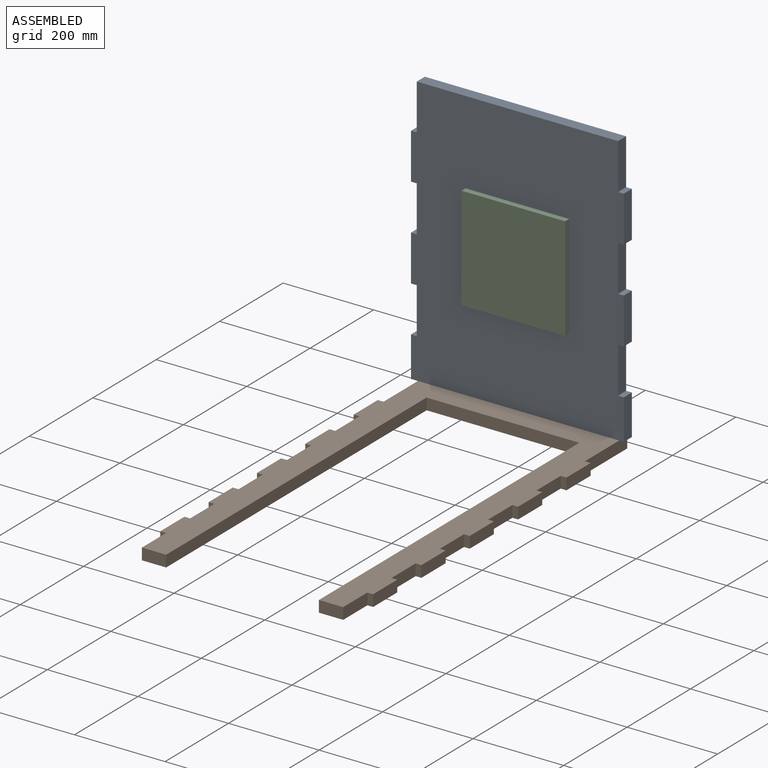
[diagram: assembled view]
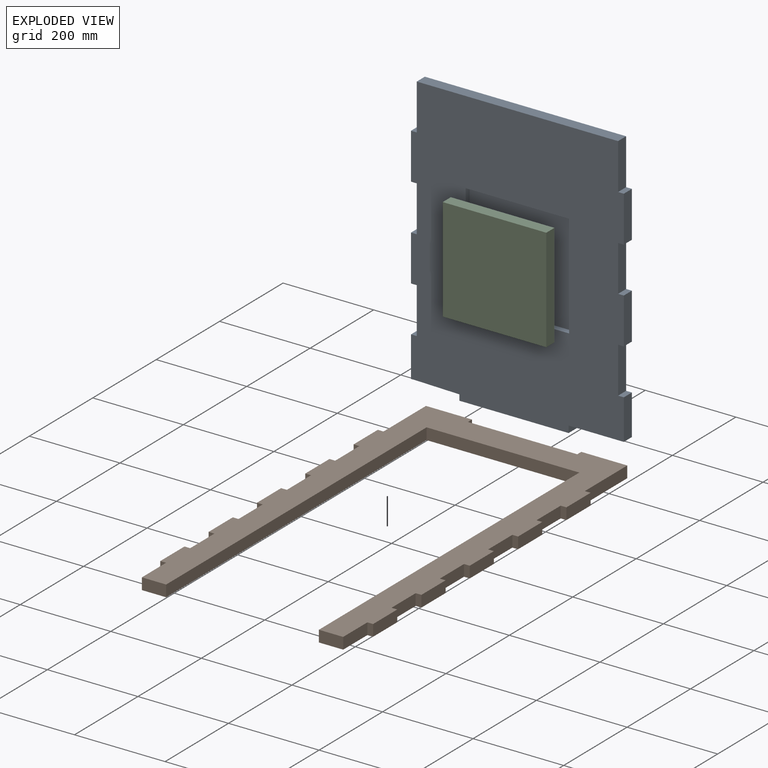
[diagram: exploded view]
GUIDED TOUR — MATED ASSEMBLY (Onshape document 3ea3240a3b025a6e508766ed, AutoMate assembly 3ea3240a3b025a6e508766ed_14e7e66ae7a0985470f5abe2_e801065fdd1ab063be09fcb5_default)

This assembly has 3 components, labeled P0..P2 below (a component is one placed occurrence of a part; the same part can appear more than once), held together by 2 mates. A mate is a constraint between two components; its type names the relative motion it leaves free:
  FASTENED — locks the two components together rigidly (no relative motion).
Axis/direction vectors are unit vectors and 'through' points are millimeter coordinates, both in the assembly's world frame.

MATES
  1. FASTENED "Fastened 2": P1 <-> P0, direction (0.000, 0.000, 1.000) through (-537.37, -304.44, -360.85) mm
  2. FASTENED "Fastened 1": P2 <-> P0, direction (0.000, 1.000, 0.000) through (-711.38, -317.14, -62.40) mm

ASSEMBLY ORDER
  1. P2 — the base component [order verified]
  2. P0 [order verified]
  3. P1 [order verified]
Order-tag legend:
  [order verified] — this step's position reverses a verified removal order: the component was checked to insert without passing through the ones already placed.

Of the 3 components, 3 carry the full construction recipe — the FeatureScript program that regenerates the part's solid from scratch; the rest are supplied as boundary geometry only.
Each toured component is shown spotlighted twice — in the assembled view, then in the exploded view, where a leader line traces a displaced component back to its assembled socket (saturated green if recipe-attached, orange if geometry-only; every other component desaturated gray) — followed by its recipe or geometry summary and the mates that hold it.
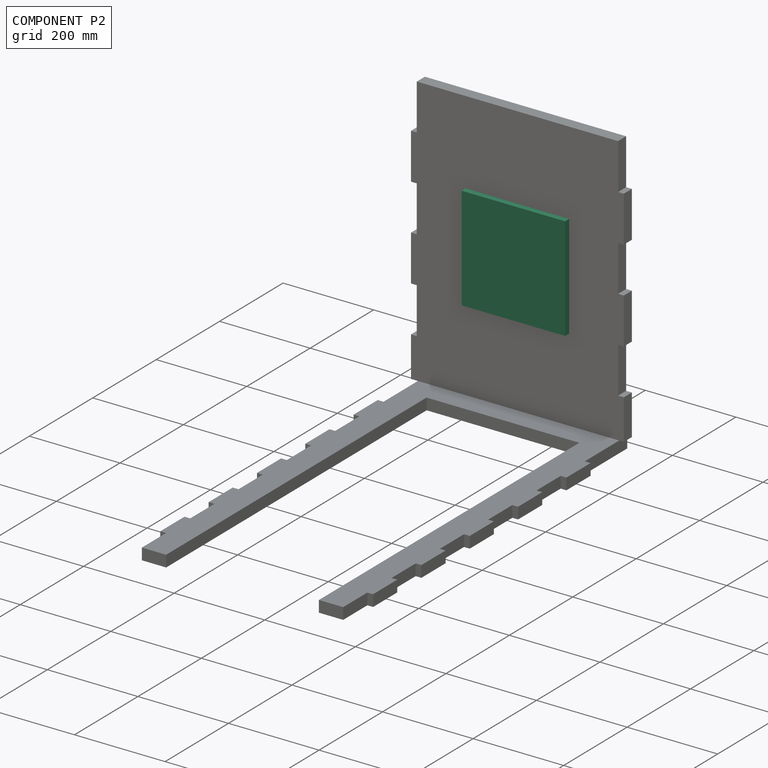
[diagram: component P2 — assembled]
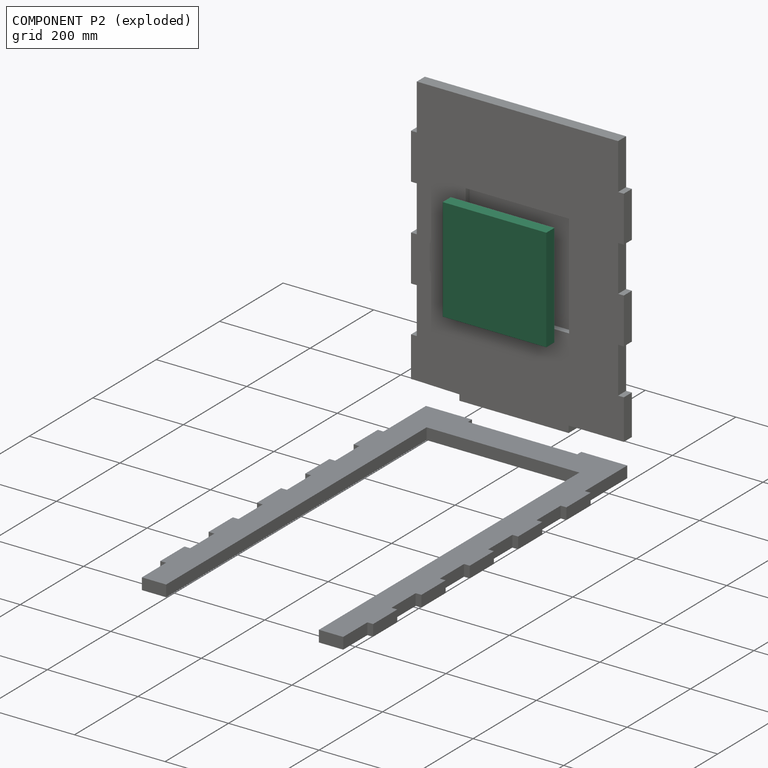
[diagram: component P2 — exploded]
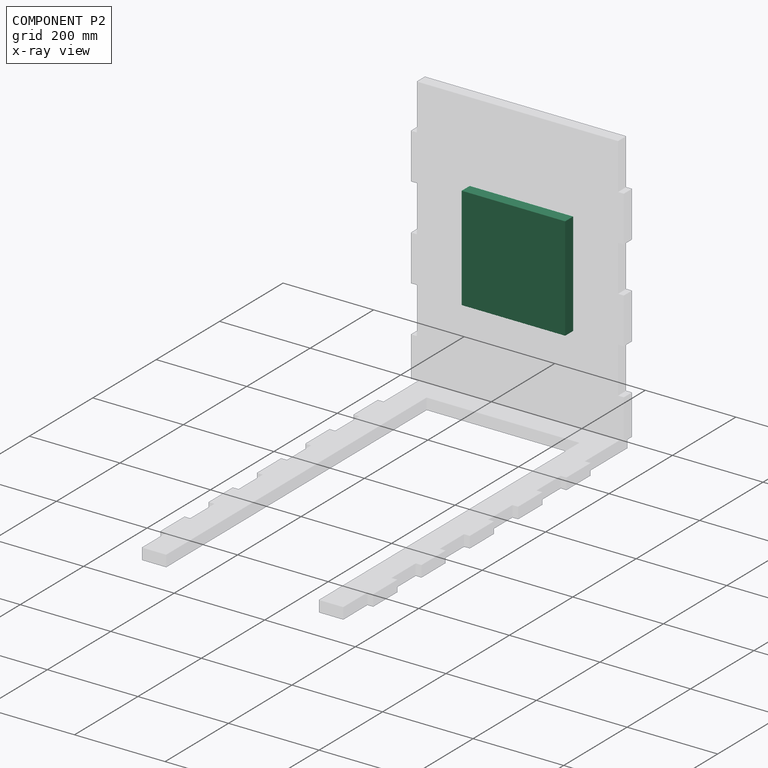
[diagram: component P2 — x-ray view]
COMPONENT P2 — recipe-attached (CADFS 00356478, mesh-verified: the recipe's output STEP matches this component's geometry to below the mesh-comparison resolution (tessellation chordal tolerance ~0.486 mm)).
Held by: FASTENED mate "Fastened 1" to P0.
Construction recipe (FeatureScript — the CAD program that rebuilds this solid; sketch coordinates are in the units given by the * unit suffixes, e.g. mm):

FeatureScript 1511;
import(path : "onshape/std/geometry.fs", version : "1511.0");
import(path : "onshape/std/common.fs", version : "1511.0");
const mm = millimeter;
const VERTEX = EntityType.VERTEX;
const EDGE = EntityType.EDGE;
const FACE = EntityType.FACE;
const BODY = EntityType.BODY;
function v(x, y){return vector(x, y);}
function OD(order){return orderDisambiguation(order);}
function OSD(set){return originalSetDisambiguation(set);}
function TD(topology){return topologyDisambiguation(topology);}
function TDD(query){return trueDependencyDisambiguation(query);}
function sQuery(a, b, c) {return sketchEntityQuery(a, b, c);}

annotation { "Feature Type Name" : "Feature", "Feature Type Description" : "" }
export const myFeature = defineFeature(function(context is Context, id is Id, definition is map)
    precondition{}
    {
        {
            var Q0;
            Q0=qCreatedBy(makeId("Front.planeOp"),FACE);
            var sketch = newSketch(context, id + "F0", { "sketchPlane" : qUnion([Q0])});
            skLineSegment(sketch, "E0.bottom", {"start": v(-46.86, 179.88) * mm, "end": v(181.74, 179.88) * mm});
            skLineSegment(sketch, "E0.top", {"start": v(-46.86, -48.72) * mm, "end": v(181.74, -48.72) * mm});
            skLineSegment(sketch, "E0.left", {"start": v(-46.86, 179.88) * mm, "end": v(-46.86, -48.72) * mm});
            skLineSegment(sketch, "E0.right", {"start": v(181.74, 179.88) * mm, "end": v(181.74, -48.72) * mm});
            skSolve(sketch);
        }
        {
            var Q0;
            Q0=makeQuery(id+"F0.imprint","IMPRINT",FACE,{"disambiguationData":[TD([[makeQuery(id+"F0.imprint","IMPRINT",EDGE,{"derivedFrom":sQuery(id+"F0.wireOp",EDGE,"E0.bottom")}),-1.0]])]});
            extrude(context, id + "F1", {"entities" : qUnion([Q0]), "depth" : 25.4 * mm});
        }
    });
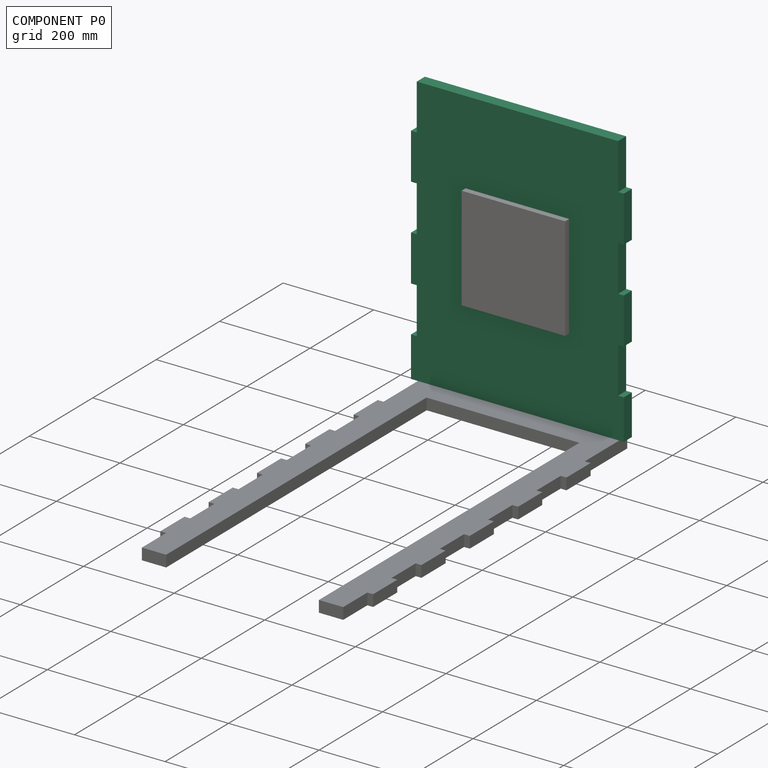
[diagram: component P0 — assembled]
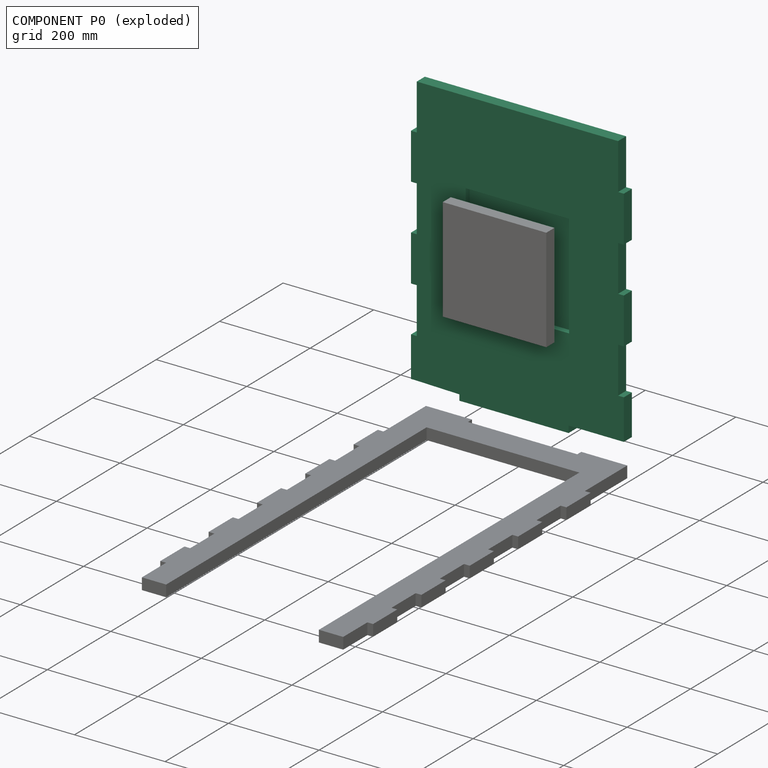
[diagram: component P0 — exploded]
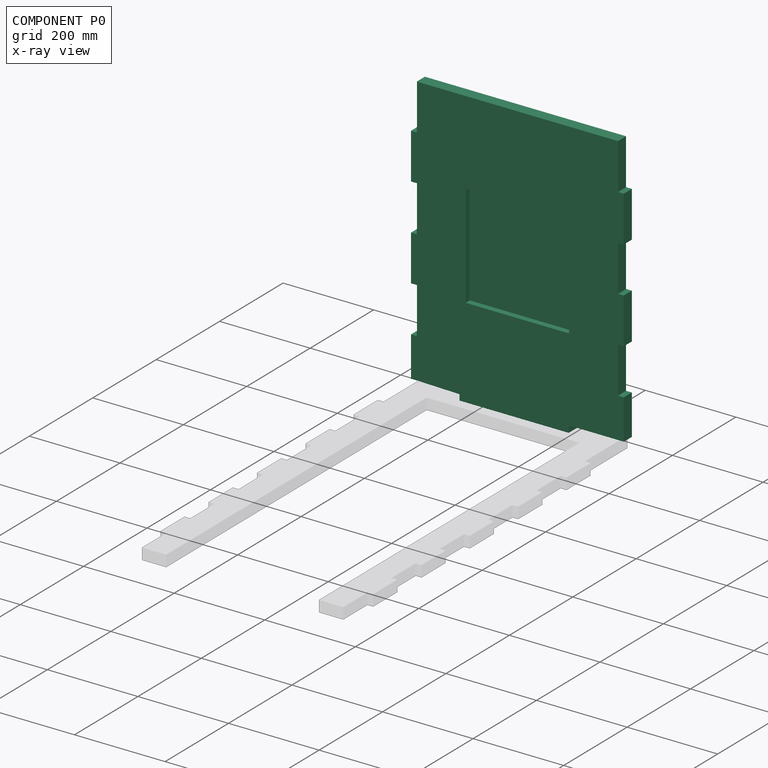
[diagram: component P0 — x-ray view]
COMPONENT P0 — recipe-attached (CADFS 00356479, mesh-verified: the recipe's output STEP matches this component's geometry to below the mesh-comparison resolution (tessellation chordal tolerance ~1.16 mm)).
Held by: FASTENED mate "Fastened 2" to P1; FASTENED mate "Fastened 1" to P2.
Construction recipe (FeatureScript — the CAD program that rebuilds this solid; sketch coordinates are in the units given by the * unit suffixes, e.g. mm):

FeatureScript 1511;
import(path : "onshape/std/geometry.fs", version : "1511.0");
import(path : "onshape/std/common.fs", version : "1511.0");
const mm = millimeter;
const VERTEX = EntityType.VERTEX;
const EDGE = EntityType.EDGE;
const FACE = EntityType.FACE;
const BODY = EntityType.BODY;
function v(x, y){return vector(x, y);}
function OD(order){return orderDisambiguation(order);}
function OSD(set){return originalSetDisambiguation(set);}
function TD(topology){return topologyDisambiguation(topology);}
function TDD(query){return trueDependencyDisambiguation(query);}
function sQuery(a, b, c) {return sketchEntityQuery(a, b, c);}

annotation { "Feature Type Name" : "Feature", "Feature Type Description" : "" }
export const myFeature = defineFeature(function(context is Context, id is Id, definition is map)
    precondition{}
    {
        {
            var Q0;
            Q0=qCreatedBy(makeId("Front.planeOp"),FACE);
            var sketch = newSketch(context, id + "F0", { "sketchPlane" : qUnion([Q0])});
            skLineSegment(sketch, "E0.bottom", {"start": v(-222.25, 298.45) * mm, "end": v(222.25, 298.45) * mm});
            skLineSegment(sketch, "E0.top", {"start": v(-222.25, -298.45) * mm, "end": v(222.25, -298.45) * mm});
            skLineSegment(sketch, "E0.left", {"start": v(-222.25, 298.45) * mm, "end": v(-222.25, -298.45) * mm});
            skLineSegment(sketch, "E0.right", {"start": v(222.25, 298.45) * mm, "end": v(222.25, -298.45) * mm});
            skLineSegment(sketch, "E1.left", {"start": v(222.25, 298.45) * mm, "end": v(222.25, 196.85) * mm});
            skLineSegment(sketch, "E2.bottom", {"start": v(222.25, 196.85) * mm, "end": v(234.95, 196.85) * mm});
            skLineSegment(sketch, "E2.top", {"start": v(222.25, 95.25) * mm, "end": v(234.95, 95.25) * mm});
            skLineSegment(sketch, "E2.left", {"start": v(222.25, 196.85) * mm, "end": v(222.25, 95.25) * mm});
            skLineSegment(sketch, "E2.right", {"start": v(234.95, 196.85) * mm, "end": v(234.95, 95.25) * mm});
            skLineSegment(sketch, "E3", {"start": v(222.25, 95.25) * mm, "end": v(222.25, -6.35) * mm});
            skLineSegment(sketch, "E4.bottom", {"start": v(222.25, -6.35) * mm, "end": v(234.95, -6.35) * mm});
            skLineSegment(sketch, "E4.top", {"start": v(222.25, -107.95) * mm, "end": v(234.95, -107.95) * mm});
            skLineSegment(sketch, "E4.left", {"start": v(222.25, -6.35) * mm, "end": v(222.25, -107.95) * mm});
            skLineSegment(sketch, "E4.right", {"start": v(234.95, -6.35) * mm, "end": v(234.95, -107.95) * mm});
            skLineSegment(sketch, "E5", {"start": v(222.25, -107.95) * mm, "end": v(222.25, -209.55) * mm});
            skLineSegment(sketch, "E6.bottom", {"start": v(222.25, -209.55) * mm, "end": v(234.95, -209.55) * mm});
            skLineSegment(sketch, "E6.top", {"start": v(222.25, -298.45) * mm, "end": v(234.95, -298.45) * mm});
            skLineSegment(sketch, "E6.left", {"start": v(222.25, -209.55) * mm, "end": v(222.25, -298.45) * mm});
            skLineSegment(sketch, "E6.right", {"start": v(234.95, -209.55) * mm, "end": v(234.95, -298.45) * mm});
            skLineSegment(sketch, "E7", {"start": v(0, 298.45) * mm, "end": v(0, -298.45) * mm});
            skLineSegment(sketch, "E8.MirrorCS", {"start": v(-222.25, -298.45) * mm, "end": v(-234.95, -298.45) * mm});
            skLineSegment(sketch, "E9.MirrorCS", {"start": v(-222.25, -209.55) * mm, "end": v(-234.95, -209.55) * mm});
            skLineSegment(sketch, "E10.MirrorCS", {"start": v(-222.25, 196.85) * mm, "end": v(-234.95, 196.85) * mm});
            skLineSegment(sketch, "E11.MirrorCS", {"start": v(-222.25, -107.95) * mm, "end": v(-234.95, -107.95) * mm});
            skLineSegment(sketch, "E12.MirrorCS", {"start": v(-222.25, 95.25) * mm, "end": v(-234.95, 95.25) * mm});
            skLineSegment(sketch, "E13.MirrorCS", {"start": v(-222.25, -6.35) * mm, "end": v(-234.95, -6.35) * mm});
            skLineSegment(sketch, "E14.MirrorCS", {"start": v(-222.25, -107.95) * mm, "end": v(-222.25, -209.55) * mm});
            skLineSegment(sketch, "E15.MirrorCS", {"start": v(-222.25, -209.55) * mm, "end": v(-222.25, -298.45) * mm});
            skLineSegment(sketch, "E16.MirrorCS", {"start": v(-234.95, -209.55) * mm, "end": v(-234.95, -298.45) * mm});
            skLineSegment(sketch, "E17.MirrorCS", {"start": v(222.25, 298.45) * mm, "end": v(-222.25, 298.45) * mm});
            skLineSegment(sketch, "E18.MirrorCS", {"start": v(-234.95, -6.35) * mm, "end": v(-234.95, -107.95) * mm});
            skLineSegment(sketch, "E19.MirrorCS", {"start": v(-222.25, 95.25) * mm, "end": v(-222.25, -6.35) * mm});
            skLineSegment(sketch, "E20.MirrorCS", {"start": v(-234.95, 196.85) * mm, "end": v(-234.95, 95.25) * mm});
            skLineSegment(sketch, "E21.MirrorCS", {"start": v(-222.25, 196.85) * mm, "end": v(-222.25, 95.25) * mm});
            skLineSegment(sketch, "E22.MirrorCS", {"start": v(-222.25, 298.45) * mm, "end": v(-222.25, 196.85) * mm});
            skLineSegment(sketch, "E23.MirrorCS", {"start": v(-222.25, -6.35) * mm, "end": v(-222.25, -107.95) * mm});
            skLineSegment(sketch, "E24.MirrorCS", {"start": v(222.25, -298.45) * mm, "end": v(-222.25, -298.45) * mm});
            skLineSegment(sketch, "E25.bottom", {"start": v(-222.25, -298.45) * mm, "end": v(-128.23, -300.66) * mm});
            skLineSegment(sketch, "E25.right", {"start": v(-128.23, -300.66) * mm, "end": v(-128.23, -313.36) * mm});
            skLineSegment(sketch, "E26", {"start": v(-128.23, -313.36) * mm, "end": v(113.07, -313.36) * mm});
            skLineSegment(sketch, "E27", {"start": v(113.07, -313.36) * mm, "end": v(113.07, -298.45) * mm});
            skLineSegment(sketch, "E28.bottom", {"start": v(114.3, 114.3) * mm, "end": v(-114.3, 114.3) * mm});
            skLineSegment(sketch, "E28.top", {"start": v(114.3, -114.3) * mm, "end": v(-114.3, -114.3) * mm});
            skLineSegment(sketch, "E28.left", {"start": v(114.3, 114.3) * mm, "end": v(114.3, -114.3) * mm});
            skLineSegment(sketch, "E28.right", {"start": v(-114.3, 114.3) * mm, "end": v(-114.3, -114.3) * mm});
            skPoint(sketch, "E28.middle", {"position": v(0, 0) * mm});
            skSolve(sketch);
        }
        {
            var Q0;
            Q0 = qSketchRegion(id + "F0", true);
            extrude(context, id + "F1", {"entities" : qUnion([Q0]), "depth" : 25.4 * mm});
        }
        {
            var Q0;
            {var subQ5=sQuery(id+"F0.wireOp",EDGE,"E28.right");Q0=makeQuery(id+"F0.imprint","IMPRINT",FACE,{"disambiguationData":[TD([[makeQuery(id+"F0.imprint","IMPRINT",EDGE,{"derivedFrom":subQ5}),1.0]])]});}
            var Q1;
            {var subQ5=sQuery(id+"F0.wireOp",EDGE,"E28.left");Q1=makeQuery(id+"F0.imprint","IMPRINT",FACE,{"disambiguationData":[TD([[makeQuery(id+"F0.imprint","IMPRINT",EDGE,{"derivedFrom":subQ5}),-1.0]])]});}
            extrude(context, id + "F2", {"entities" : qUnion([Q0, Q1]), "operationType" : NewBodyOperationType.ADD, "depth" : 12.7 * mm});
        }
    });
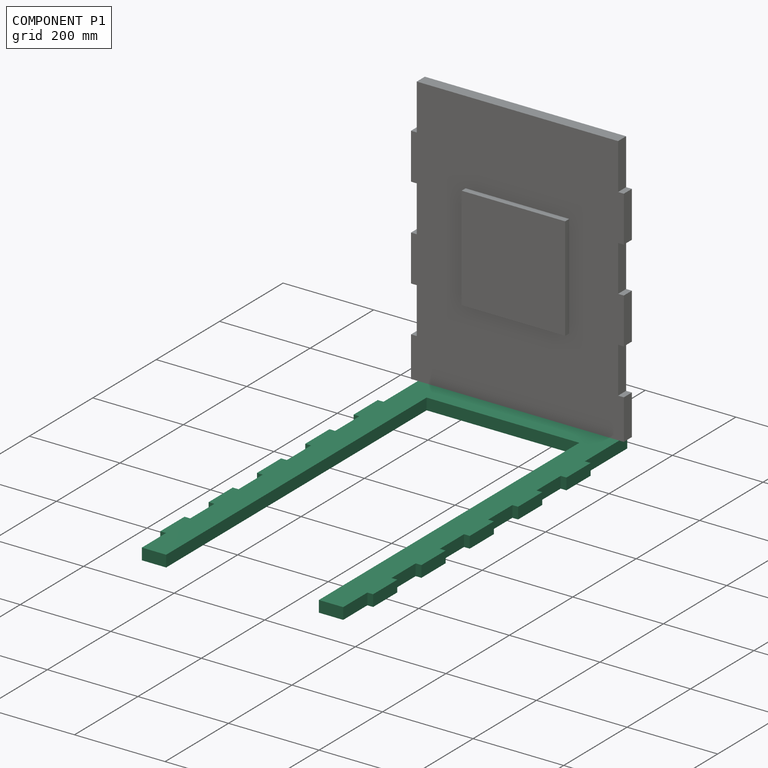
[diagram: component P1 — assembled]
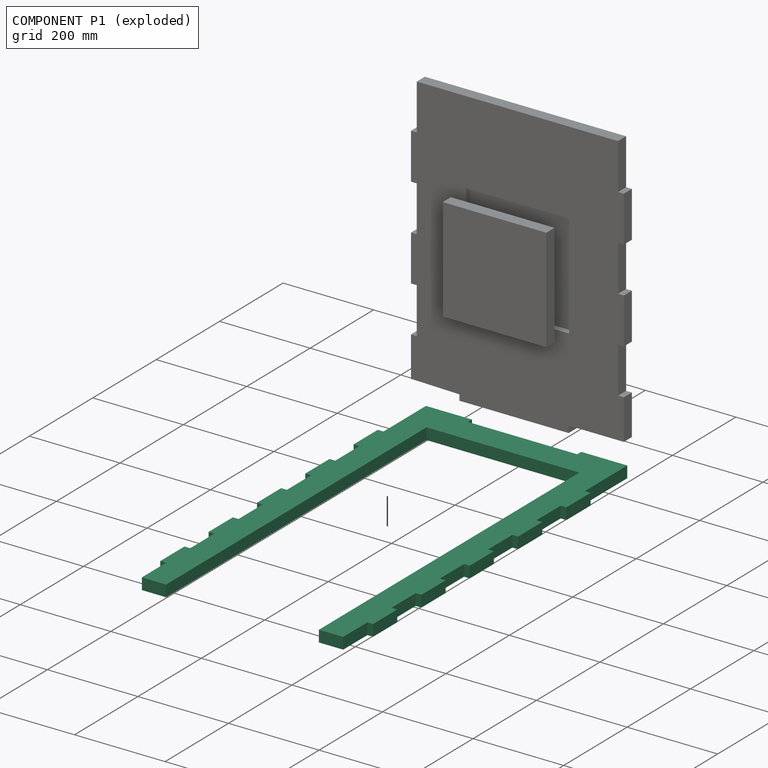
[diagram: component P1 — exploded]
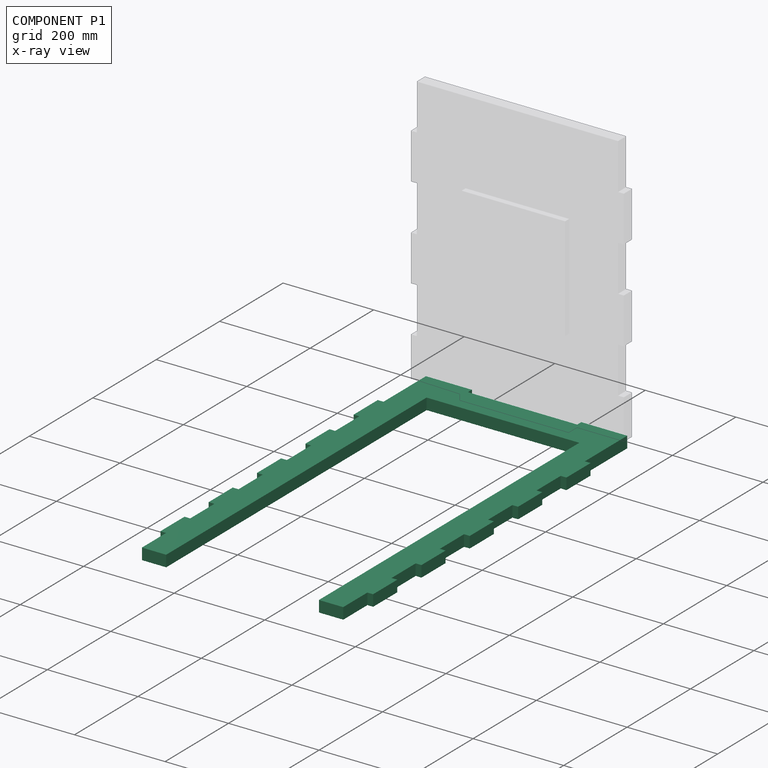
[diagram: component P1 — x-ray view]
COMPONENT P1 — recipe-attached (CADFS 00356475, mesh-verified: the recipe's output STEP matches this component's geometry to below the mesh-comparison resolution (tessellation chordal tolerance ~1.52 mm)).
Held by: FASTENED mate "Fastened 2" to P0.
Construction recipe (FeatureScript — the CAD program that rebuilds this solid; sketch coordinates are in the units given by the * unit suffixes, e.g. mm):

FeatureScript 1511;
import(path : "onshape/std/geometry.fs", version : "1511.0");
import(path : "onshape/std/common.fs", version : "1511.0");
const mm = millimeter;
const VERTEX = EntityType.VERTEX;
const EDGE = EntityType.EDGE;
const FACE = EntityType.FACE;
const BODY = EntityType.BODY;
function v(x, y){return vector(x, y);}
function OD(order){return orderDisambiguation(order);}
function OSD(set){return originalSetDisambiguation(set);}
function TD(topology){return topologyDisambiguation(topology);}
function TDD(query){return trueDependencyDisambiguation(query);}
function sQuery(a, b, c) {return sketchEntityQuery(a, b, c);}

annotation { "Feature Type Name" : "Feature", "Feature Type Description" : "" }
export const myFeature = defineFeature(function(context is Context, id is Id, definition is map)
    precondition{}
    {
        {
            var Q0;
            Q0=qCreatedBy(makeId("Front.planeOp"),FACE);
            var sketch = newSketch(context, id + "F0", { "sketchPlane" : qUnion([Q0])});
            skLineSegment(sketch, "E0", {"start": v(128.93, 183.28) * mm, "end": v(-93.32, 183.28) * mm});
            skLineSegment(sketch, "E1.top", {"start": v(-93.32, 107.08) * mm, "end": v(-106.02, 107.08) * mm});
            skLineSegment(sketch, "E2.bottom", {"start": v(-106.02, 30.88) * mm, "end": v(-93.32, 30.88) * mm});
            skLineSegment(sketch, "E2.top", {"start": v(-106.02, -45.32) * mm, "end": v(-93.32, -45.32) * mm});
            skLineSegment(sketch, "E3.MirrorCS", {"start": v(-106.02, -197.72) * mm, "end": v(-93.32, -197.72) * mm});
            skLineSegment(sketch, "E4.MirrorCS", {"start": v(-106.02, -578.72) * mm, "end": v(-93.32, -578.72) * mm});
            skLineSegment(sketch, "E5.MirrorCS", {"start": v(-106.02, -350.12) * mm, "end": v(-93.32, -350.12) * mm});
            skLineSegment(sketch, "E6.MirrorCS", {"start": v(-106.02, -502.52) * mm, "end": v(-93.32, -502.52) * mm});
            skLineSegment(sketch, "E7.MirrorCS", {"start": v(-106.02, -426.32) * mm, "end": v(-93.32, -426.32) * mm});
            skLineSegment(sketch, "E8.MirrorCS", {"start": v(-106.02, -121.52) * mm, "end": v(-93.32, -121.52) * mm});
            skLineSegment(sketch, "E9.MirrorCS", {"start": v(-106.02, -273.92) * mm, "end": v(-93.32, -273.92) * mm});
            skPoint(sketch, "E10.end.orphan", {"position": v(128.93, -699.88) * mm});
            skLineSegment(sketch, "E11", {"start": v(-106.02, 30.88) * mm, "end": v(-106.02, 107.08) * mm});
            skLineSegment(sketch, "E12", {"start": v(-93.32, 107.08) * mm, "end": v(-93.32, 183.28) * mm});
            skLineSegment(sketch, "E13", {"start": v(-93.32, 30.88) * mm, "end": v(-93.32, -45.32) * mm});
            skLineSegment(sketch, "E14", {"start": v(-106.02, -45.32) * mm, "end": v(-106.02, -121.52) * mm});
            skLineSegment(sketch, "E15", {"start": v(-93.32, -121.52) * mm, "end": v(-93.32, -197.72) * mm});
            skLineSegment(sketch, "E16", {"start": v(-106.02, -197.72) * mm, "end": v(-106.02, -273.92) * mm});
            skLineSegment(sketch, "E17", {"start": v(-93.32, -273.92) * mm, "end": v(-93.32, -350.12) * mm});
            skLineSegment(sketch, "E18", {"start": v(-106.02, -350.12) * mm, "end": v(-106.02, -426.32) * mm});
            skLineSegment(sketch, "E19", {"start": v(-106.02, -502.52) * mm, "end": v(-106.02, -578.72) * mm});
            skLineSegment(sketch, "E20", {"start": v(-93.32, -502.52) * mm, "end": v(-93.32, -426.32) * mm});
            skLineSegment(sketch, "E21", {"start": v(-93.32, -578.72) * mm, "end": v(-93.32, -699.88) * mm});
            skLineSegment(sketch, "E22", {"start": v(128.93, 183.28) * mm, "end": v(128.93, -699.88) * mm});
            skLineSegment(sketch, "E23", {"start": v(128.93, -699.88) * mm, "end": v(-93.32, -699.88) * mm});
            skLineSegment(sketch, "E24.MirrorCS", {"start": v(363.88, -45.32) * mm, "end": v(351.18, -45.32) * mm});
            skLineSegment(sketch, "E25.MirrorCS", {"start": v(363.88, 30.88) * mm, "end": v(351.18, 30.88) * mm});
            skLineSegment(sketch, "E26.MirrorCS", {"start": v(351.18, 107.08) * mm, "end": v(363.88, 107.08) * mm});
            skLineSegment(sketch, "E27.MirrorCS", {"start": v(363.88, -426.32) * mm, "end": v(351.18, -426.32) * mm});
            skLineSegment(sketch, "E28.MirrorCS", {"start": v(363.88, -502.52) * mm, "end": v(351.18, -502.52) * mm});
            skLineSegment(sketch, "E29.MirrorCS", {"start": v(363.88, -578.72) * mm, "end": v(351.18, -578.72) * mm});
            skLineSegment(sketch, "E30.MirrorCS", {"start": v(363.88, -121.52) * mm, "end": v(351.18, -121.52) * mm});
            skLineSegment(sketch, "E31.MirrorCS", {"start": v(363.88, -197.72) * mm, "end": v(351.18, -197.72) * mm});
            skLineSegment(sketch, "E32.MirrorCS", {"start": v(363.88, -350.12) * mm, "end": v(351.18, -350.12) * mm});
            skLineSegment(sketch, "E33.MirrorCS", {"start": v(363.88, -273.92) * mm, "end": v(351.18, -273.92) * mm});
            skLineSegment(sketch, "E34.MirrorCS", {"start": v(351.18, -502.52) * mm, "end": v(351.18, -426.32) * mm});
            skLineSegment(sketch, "E35.MirrorCS", {"start": v(351.18, -273.92) * mm, "end": v(351.18, -350.12) * mm});
            skLineSegment(sketch, "E36.MirrorCS", {"start": v(351.18, 107.08) * mm, "end": v(351.18, 183.28) * mm});
            skLineSegment(sketch, "E37.MirrorCS", {"start": v(363.88, -502.52) * mm, "end": v(363.88, -578.72) * mm});
            skLineSegment(sketch, "E38.MirrorCS", {"start": v(363.88, -350.12) * mm, "end": v(363.88, -426.32) * mm});
            skLineSegment(sketch, "E39.MirrorCS", {"start": v(351.18, 30.88) * mm, "end": v(351.18, -45.32) * mm});
            skLineSegment(sketch, "E40.MirrorCS", {"start": v(363.88, -45.32) * mm, "end": v(363.88, -121.52) * mm});
            skLineSegment(sketch, "E41.MirrorCS", {"start": v(363.88, -197.72) * mm, "end": v(363.88, -273.92) * mm});
            skLineSegment(sketch, "E42.MirrorCS", {"start": v(363.88, 30.88) * mm, "end": v(363.88, 107.08) * mm});
            skLineSegment(sketch, "E43.MirrorCS", {"start": v(351.18, -121.52) * mm, "end": v(351.18, -197.72) * mm});
            skLineSegment(sketch, "E44.MirrorCS", {"start": v(351.18, -578.72) * mm, "end": v(351.18, -699.88) * mm});
            skLineSegment(sketch, "E45.MirrorCS", {"start": v(128.93, 183.28) * mm, "end": v(351.18, 183.28) * mm});
            skLineSegment(sketch, "E46.MirrorCS", {"start": v(128.93, -699.88) * mm, "end": v(351.18, -699.88) * mm});
            skLineSegment(sketch, "E47.bottom", {"start": v(351.18, -699.88) * mm, "end": v(249.58, -699.88) * mm});
            skLineSegment(sketch, "E47.top", {"start": v(351.18, -712.58) * mm, "end": v(249.58, -712.58) * mm});
            skLineSegment(sketch, "E47.left", {"start": v(351.18, -699.88) * mm, "end": v(351.18, -712.58) * mm});
            skLineSegment(sketch, "E47.right", {"start": v(249.58, -699.88) * mm, "end": v(249.58, -712.58) * mm});
            skLineSegment(sketch, "E48.top", {"start": v(249.58, -699.88) * mm, "end": v(-93.32, -699.88) * mm});
            skLineSegment(sketch, "E48.left", {"start": v(249.58, -712.58) * mm, "end": v(249.58, -699.88) * mm});
            skLineSegment(sketch, "E49.bottom", {"start": v(8.28, -712.58) * mm, "end": v(-93.32, -712.58) * mm});
            skLineSegment(sketch, "E49.top", {"start": v(8.28, -699.88) * mm, "end": v(-93.32, -699.88) * mm});
            skLineSegment(sketch, "E49.left", {"start": v(8.28, -712.58) * mm, "end": v(8.28, -699.88) * mm});
            skLineSegment(sketch, "E49.right", {"start": v(-93.32, -712.58) * mm, "end": v(-93.32, -699.88) * mm});
            skSolve(sketch);
        }
        {
            var Q0;
            Q0 = qSketchRegion(id + "F0", true);
            extrude(context, id + "F1", {"entities" : qUnion([Q0]), "depth" : 25.4 * mm});
        }
        {
            var Q0;
            Q0=makeQuery(id+"F1.opExtrude","CAP_FACE",FACE,{"disambiguationData":[OSD([sQuery(id+"F0.wireOp",EDGE,"E0"),sQuery(id+"F0.wireOp",EDGE,"E3.MirrorCS"),sQuery(id+"F0.wireOp",EDGE,"E4.MirrorCS"),sQuery(id+"F0.wireOp",EDGE,"E2.bottom"),sQuery(id+"F0.wireOp",EDGE,"E5.MirrorCS"),sQuery(id+"F0.wireOp",EDGE,"E6.MirrorCS"),sQuery(id+"F0.wireOp",EDGE,"E7.MirrorCS"),sQuery(id+"F0.wireOp",EDGE,"E8.MirrorCS"),sQuery(id+"F0.wireOp",EDGE,"E1.top"),sQuery(id+"F0.wireOp",EDGE,"E2.top"),sQuery(id+"F0.wireOp",EDGE,"E9.MirrorCS"),sQuery(id+"F0.wireOp",EDGE,"E11"),sQuery(id+"F0.wireOp",EDGE,"E12"),sQuery(id+"F0.wireOp",EDGE,"E13"),sQuery(id+"F0.wireOp",EDGE,"E14"),sQuery(id+"F0.wireOp",EDGE,"E15"),sQuery(id+"F0.wireOp",EDGE,"E16"),sQuery(id+"F0.wireOp",EDGE,"E17"),sQuery(id+"F0.wireOp",EDGE,"E18"),sQuery(id+"F0.wireOp",EDGE,"E19"),sQuery(id+"F0.wireOp",EDGE,"E20"),sQuery(id+"F0.wireOp",EDGE,"E21"),sQuery(id+"F0.wireOp",EDGE,"E25.MirrorCS"),sQuery(id+"F0.wireOp",EDGE,"E26.MirrorCS"),sQuery(id+"F0.wireOp",EDGE,"E24.MirrorCS"),sQuery(id+"F0.wireOp",EDGE,"E27.MirrorCS"),sQuery(id+"F0.wireOp",EDGE,"E28.MirrorCS"),sQuery(id+"F0.wireOp",EDGE,"E29.MirrorCS"),sQuery(id+"F0.wireOp",EDGE,"E30.MirrorCS"),sQuery(id+"F0.wireOp",EDGE,"E31.MirrorCS"),sQuery(id+"F0.wireOp",EDGE,"E32.MirrorCS"),sQuery(id+"F0.wireOp",EDGE,"E33.MirrorCS"),sQuery(id+"F0.wireOp",EDGE,"E34.MirrorCS"),sQuery(id+"F0.wireOp",EDGE,"E35.MirrorCS"),sQuery(id+"F0.wireOp",EDGE,"E36.MirrorCS"),sQuery(id+"F0.wireOp",EDGE,"E37.MirrorCS"),sQuery(id+"F0.wireOp",EDGE,"E38.MirrorCS"),sQuery(id+"F0.wireOp",EDGE,"E39.MirrorCS"),sQuery(id+"F0.wireOp",EDGE,"E40.MirrorCS"),sQuery(id+"F0.wireOp",EDGE,"E41.MirrorCS"),sQuery(id+"F0.wireOp",EDGE,"E42.MirrorCS"),sQuery(id+"F0.wireOp",EDGE,"E43.MirrorCS"),sQuery(id+"F0.wireOp",EDGE,"E44.MirrorCS"),sQuery(id+"F0.wireOp",EDGE,"E45.MirrorCS"),sQuery(id+"F0.wireOp",EDGE,"E47.top"),sQuery(id+"F0.wireOp",EDGE,"E47.left"),sQuery(id+"F0.wireOp",EDGE,"E48.top"),sQuery(id+"F0.wireOp",EDGE,"E48.left"),sQuery(id+"F0.wireOp",EDGE,"E49.bottom"),sQuery(id+"F0.wireOp",EDGE,"E49.left"),sQuery(id+"F0.wireOp",EDGE,"E49.right")])],"isStart":false});
            var sketch = newSketch(context, id + "F2", { "sketchPlane" : qUnion([Q0])});
            skLineSegment(sketch, "E50.0", {"start": v(128.93, 183.28) * mm, "end": v(128.93, -699.88) * mm});
            skLineSegment(sketch, "E51.bottom", {"start": v(297.58, 121.35) * mm, "end": v(-39.72, 121.35) * mm});
            skLineSegment(sketch, "E51.top", {"start": v(297.58, -637.95) * mm, "end": v(-39.72, -637.95) * mm});
            skLineSegment(sketch, "E51.left", {"start": v(297.58, 121.35) * mm, "end": v(297.58, -637.95) * mm});
            skLineSegment(sketch, "E51.right", {"start": v(-39.72, 121.35) * mm, "end": v(-39.72, -637.95) * mm});
            skPoint(sketch, "E51.middle", {"position": v(128.93, -258.3) * mm});
            skLineSegment(sketch, "E52.bottom", {"start": v(-39.72, 121.35) * mm, "end": v(297.58, 121.35) * mm});
            skLineSegment(sketch, "E52.top", {"start": v(-39.72, 183.28) * mm, "end": v(297.58, 183.28) * mm});
            skLineSegment(sketch, "E52.left", {"start": v(-39.72, 121.35) * mm, "end": v(-39.72, 183.28) * mm});
            skLineSegment(sketch, "E52.right", {"start": v(297.58, 121.35) * mm, "end": v(297.58, 183.28) * mm});
            skSolve(sketch);
        }
        {
            var Q0;
            Q0 = qSketchRegion(id + "F2", true);
            extrude(context, id + "F3", {"entities" : qUnion([Q0]), "operationType" : NewBodyOperationType.REMOVE, "endBound" : BoundingType.THROUGH_ALL, "oppositeDirection" : true, "depth" : 25.4 * mm});
        }
    });
PROVENANCE & LICENSES
Assembly (occurrences, transforms, mates, per-part STEP geometry): AutoMate dataset, Zenodo record 7776208, CC0.
Construction recipes: CADFS (HuggingFace VladPyatov/CADFS, CC-BY-4.0, layered over the ABC dataset), FeatureScript reconstruction programs keyed by ABC model id.
Join: ABC meta listings map ABC model id -> Onshape documentId; within a shared document, parts are matched by geometric signature (bounding-box dims + volume at 0.1% relative tolerance, exact B-rep face/solid counts).
Verification: 3 of this assembly's 3 components carry a recipe attachment, and every attachment is mesh-verified: the CADFS STEP and the AutoMate member STEP were compared as meshes in their shared local frame (symmetric sampled-point-to-mesh distance); worst across the 3 attachments: below the mesh-comparison resolution (tessellation chordal tolerance ~1.52 mm) on a 1012 mm part.
Renders: orthographic iso camera (az 35 / el 25); the floor grid conveys scale (grid pitch printed in each image; no ruler). In the exploded view each component is displaced by its stored offset vector: the offsets alone carry the explosion direction (mate normal/axis signs are not orientation cues and do not encode it), and separation distances are assigned per mate-chain, not proportionally to assembly-order depth.
